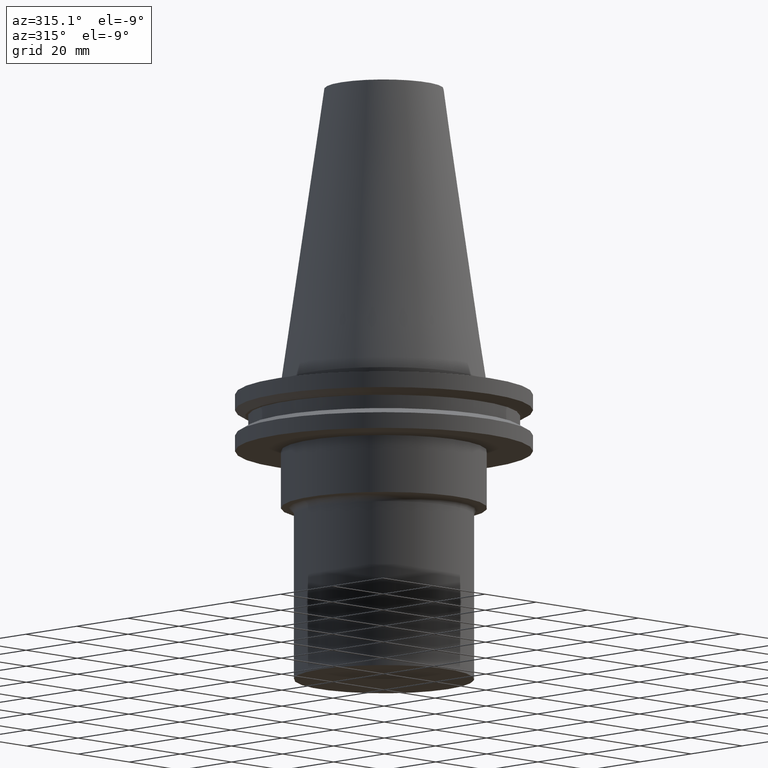
[diagram: clean part render]
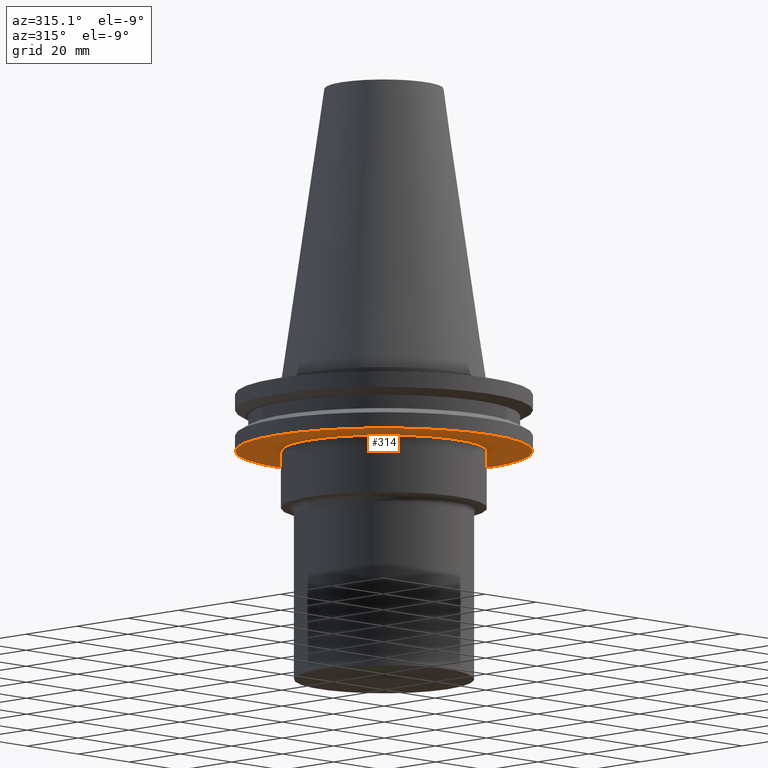
[diagram: same view with one face highlighted and labeled with its STEP entity id]
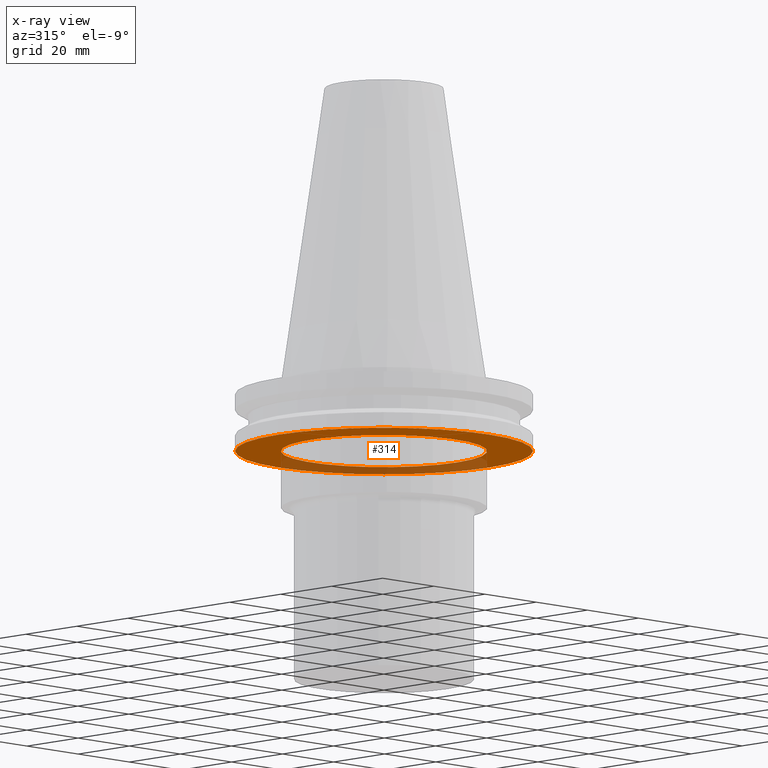
[diagram: x-ray of the same camera — body ghosted, the highlighted face saturated]
A machine part, auxiliary view. The second image highlights one B-rep face of the part: STEP entity #314.
The next image is the same camera in x-ray: the body ghosted, the highlighted face saturated — about 30% of this face is hidden behind the body in this view.
In plain terms, the highlighted planar face has unit normal (0, -0, 1).
Its self-contained STEP definition (entity closure, byte-faithful):
#11 = CARTESIAN_POINT ( 'NONE',  ( 0.000000000000000000, 0.000000000000000000, -19.04999999999999716 ) ) ;
#12 = DIRECTION ( 'NONE',  ( -0.000000000000000000, -0.000000000000000000, 1.000000000000000000 ) ) ;
#15 = AXIS2_PLACEMENT_3D ( 'NONE', #291, #137, #237 ) ;
#21 = CARTESIAN_POINT ( 'NONE',  ( 28.57499999999999929, 0.000000000000000000, -19.04999999999999716 ) ) ;
#37 = FACE_BOUND ( 'NONE', #121, .T. ) ;
#81 = AXIS2_PLACEMENT_3D ( 'NONE', #11, #12, #140 ) ;
#120 = DIRECTION ( 'NONE',  ( -0.000000000000000000, -0.000000000000000000, 1.000000000000000000 ) ) ;
#121 = EDGE_LOOP ( 'NONE', ( #403 ) ) ;
#124 = EDGE_CURVE ( 'NONE', #307, #307, #349, .T. ) ;
#137 = DIRECTION ( 'NONE',  ( 0.000000000000000000, -0.000000000000000000, 1.000000000000000000 ) ) ;
#140 = DIRECTION ( 'NONE',  ( 1.000000000000000000, 0.000000000000000000, 0.000000000000000000 ) ) ;
#151 = VERTEX_POINT ( 'NONE', #276 ) ;
#236 = CARTESIAN_POINT ( 'NONE',  ( 0.000000000000000000, 0.000000000000000000, -19.04999999999999716 ) ) ;
#237 = DIRECTION ( 'NONE',  ( 1.000000000000000000, 0.000000000000000000, 0.000000000000000000 ) ) ;
#257 = FACE_OUTER_BOUND ( 'NONE', #308, .T. ) ;
#276 = CARTESIAN_POINT ( 'NONE',  ( 41.27499999999999147, 0.000000000000000000, -19.04999999999999716 ) ) ;
#291 = CARTESIAN_POINT ( 'NONE',  ( 0.000000000000000000, 41.27499999999999147, -19.04999999999999716 ) ) ;
#306 = ORIENTED_EDGE ( 'NONE', *, *, #362, .F. ) ;
#307 = VERTEX_POINT ( 'NONE', #21 ) ;
#308 = EDGE_LOOP ( 'NONE', ( #306 ) ) ;
#314 = ADVANCED_FACE ( 'NONE', ( #257, #37 ), #389, .F. ) ;
#318 = AXIS2_PLACEMENT_3D ( 'NONE', #236, #120, #401 ) ;
#349 = CIRCLE ( 'NONE', #81, 28.57499999999999929 ) ;
#355 = CIRCLE ( 'NONE', #318, 41.27499999999999147 ) ;
#362 = EDGE_CURVE ( 'NONE', #151, #151, #355, .T. ) ;
#389 = PLANE ( 'NONE',  #15 ) ;
#401 = DIRECTION ( 'NONE',  ( 1.000000000000000000, 0.000000000000000000, 0.000000000000000000 ) ) ;
#403 = ORIENTED_EDGE ( 'NONE', *, *, #124, .T. ) ;